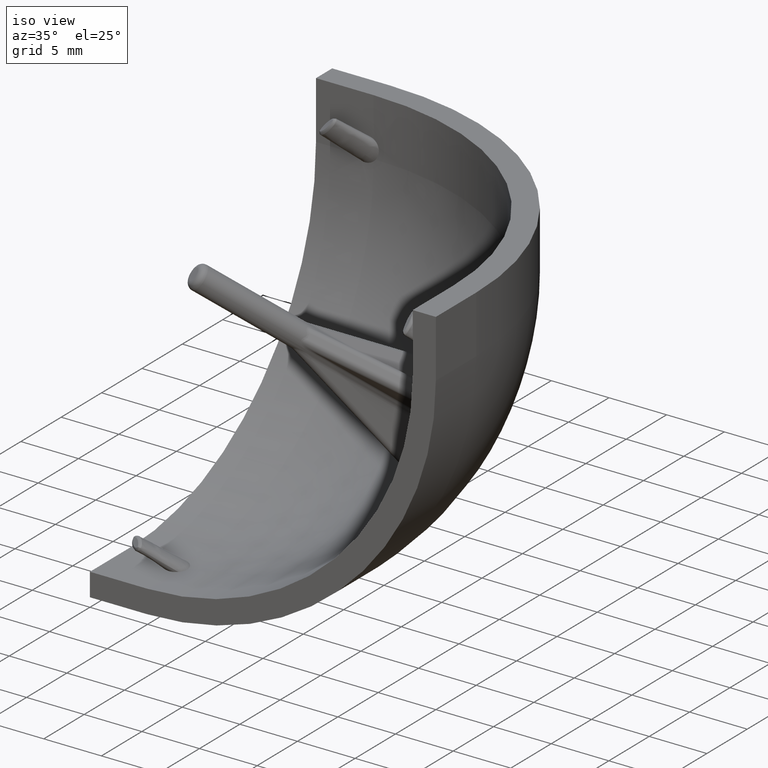
[diagram: clean part render]
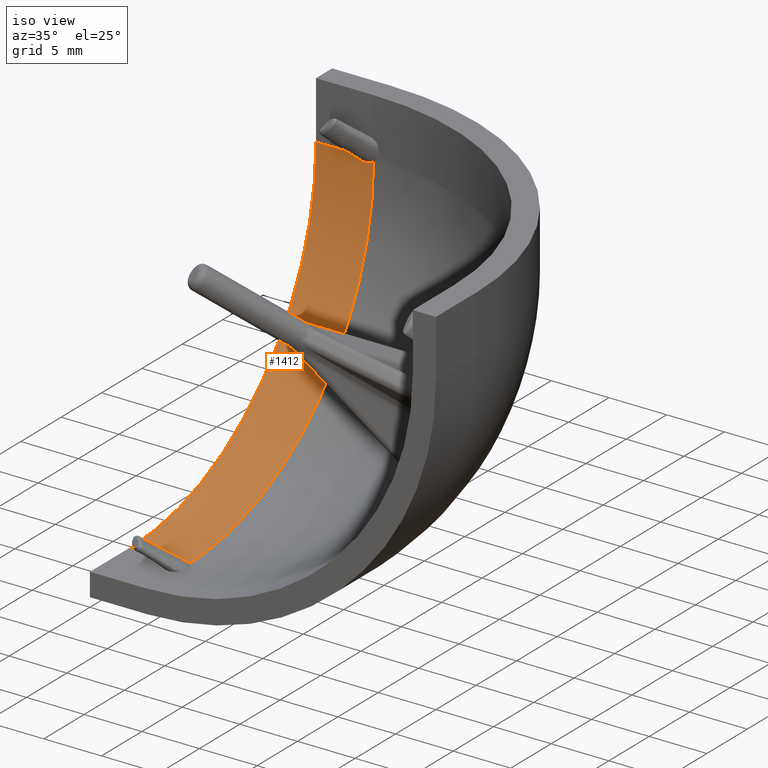
[diagram: same view with one face highlighted and labeled with its STEP entity id]
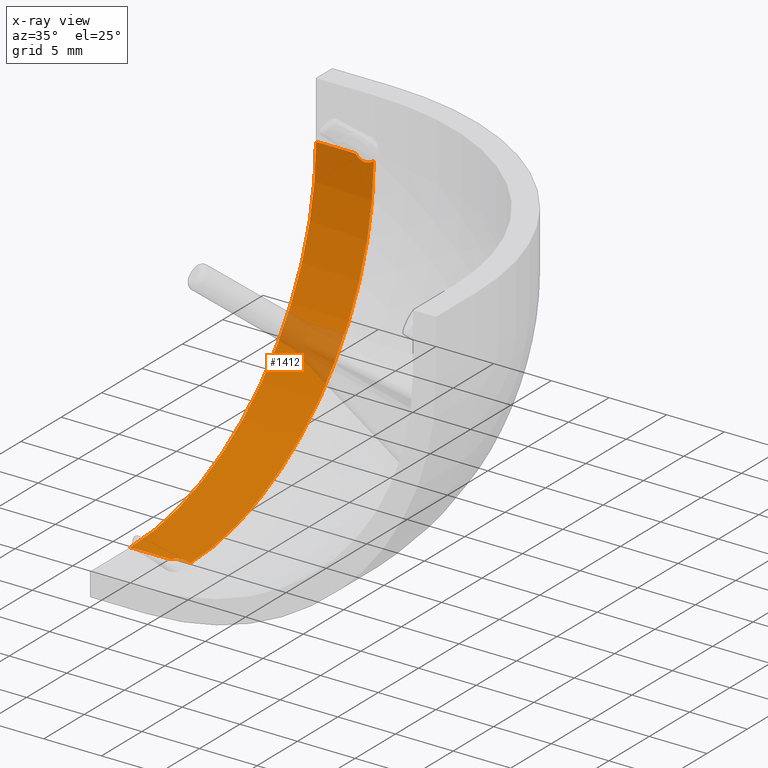
[diagram: x-ray of the same camera — body ghosted, the highlighted face saturated]
A machine part, iso view. The second image highlights one B-rep face of the part: STEP entity #1412.
The next image is the same camera in x-ray: the body ghosted, the highlighted face saturated — about 9% of this face is hidden behind the body in this view.
In plain terms, the highlighted cylindrical surface (partial cylindrical patch) has radius 23 mm, axis along (1, 0, -0).
Its self-contained STEP definition (entity closure, byte-faithful):
#78=CYLINDRICAL_SURFACE('',#1567,23.);
#115=CIRCLE('',#1529,23.);
#130=CIRCLE('',#1545,23.);
#224=FACE_OUTER_BOUND('',#314,.T.);
#314=EDGE_LOOP('',(#1134,#1135,#1136,#1137,#1138,#1139,#1140,#1141));
#413=LINE('',#5484,#471);
#417=LINE('',#5536,#475);
#471=VECTOR('',#1825,1000.);
#475=VECTOR('',#1847,1000.);
#488=B_SPLINE_CURVE_WITH_KNOTS('',3,(#2147,#2148,#2149,#2150,#2151,#2152),
 .UNSPECIFIED.,.F.,.F.,(4,2,4),(9.99999662123539E-7,0.00986059625022308,
0.0197048987349933),.UNSPECIFIED.);
#500=B_SPLINE_CURVE_WITH_KNOTS('',3,(#2777,#2778,#2779,#2780,#2781,#2782,
#2783,#2784,#2785,#2786,#2787,#2788),.UNSPECIFIED.,.F.,.F.,(4,2,2,2,2,4),
(9.99999747714522E-7,0.02031527031228,0.0405939994736865,0.0667656357999751,
0.0834172290885618,0.0951135427239088),.UNSPECIFIED.);
#547=B_SPLINE_CURVE_WITH_KNOTS('',3,(#5538,#5539,#5540,#5541,#5542,#5543,
#5544,#5545,#5546,#5547,#5548,#5549),.UNSPECIFIED.,.F.,.F.,(4,2,2,2,2,4),
(9.999999404831E-7,0.0364918917763539,0.088569232202797,0.170365590608539,
0.233890730315202,0.297485880107794),.UNSPECIFIED.);
#548=B_SPLINE_CURVE_WITH_KNOTS('',3,(#5550,#5551,#5552,#5553,#5554,#5555),
 .UNSPECIFIED.,.F.,.F.,(4,2,4),(9.99999562127304E-7,0.00984054738852286,
0.0196975137457518),.UNSPECIFIED.);
#561=VERTEX_POINT('',#2145);
#562=VERTEX_POINT('',#2146);
#577=VERTEX_POINT('',#2775);
#578=VERTEX_POINT('',#2776);
#643=VERTEX_POINT('',#5028);
#666=VERTEX_POINT('',#5415);
#667=VERTEX_POINT('',#5417);
#682=VERTEX_POINT('',#5517);
#700=EDGE_CURVE('',#561,#562,#488,.T.);
#716=EDGE_CURVE('',#577,#578,#500,.T.);
#794=EDGE_CURVE('',#578,#643,#115,.T.);
#822=EDGE_CURVE('',#666,#667,#130,.T.);
#847=EDGE_CURVE('',#667,#562,#413,.T.);
#856=EDGE_CURVE('',#666,#682,#417,.T.);
#857=EDGE_CURVE('',#643,#561,#547,.T.);
#858=EDGE_CURVE('',#682,#577,#548,.T.);
#1134=ORIENTED_EDGE('',*,*,#794,.T.);
#1135=ORIENTED_EDGE('',*,*,#857,.T.);
#1136=ORIENTED_EDGE('',*,*,#700,.T.);
#1137=ORIENTED_EDGE('',*,*,#847,.F.);
#1138=ORIENTED_EDGE('',*,*,#822,.F.);
#1139=ORIENTED_EDGE('',*,*,#856,.T.);
#1140=ORIENTED_EDGE('',*,*,#858,.T.);
#1141=ORIENTED_EDGE('',*,*,#716,.T.);
#1412=ADVANCED_FACE('',(#224),#78,.F.);
#1529=AXIS2_PLACEMENT_3D('',#5035,#1745,#1746);
#1545=AXIS2_PLACEMENT_3D('',#5418,#1782,#1783);
#1567=AXIS2_PLACEMENT_3D('',#5537,#1848,#1849);
#1745=DIRECTION('center_axis',(1.,8.67361737988403E-16,-3.49148133884313E-15));
#1746=DIRECTION('ref_axis',(3.49148133884313E-15,8.67361737988403E-16,1.));
#1782=DIRECTION('center_axis',(1.,2.44929359829471E-16,0.));
#1783=DIRECTION('ref_axis',(2.44929359829471E-16,-1.,0.));
#1825=DIRECTION('',(1.,0.,0.));
#1847=DIRECTION('',(1.,6.93889390390722E-15,-3.49148336110938E-15));
#1848=DIRECTION('center_axis',(1.,6.93889390390722E-15,-3.49148336110938E-15));
#1849=DIRECTION('ref_axis',(-6.93889390390722E-15,1.,-2.24207754291971E-44));
#2145=CARTESIAN_POINT('',(3.56746331594311,27.9994687629484,-5.1563221742381));
#2146=CARTESIAN_POINT('',(3.44771592869993,28.,-5.));
#2147=CARTESIAN_POINT('Ctrl Pts',(3.56746331594311,27.9994687629484,-5.1563221742381));
#2148=CARTESIAN_POINT('Ctrl Pts',(3.54489254593708,27.9996311438893,-5.13243128738172));
#2149=CARTESIAN_POINT('Ctrl Pts',(3.52350325998528,27.99976465365,-5.10726848093999));
#2150=CARTESIAN_POINT('Ctrl Pts',(3.48356612759445,27.9999486769791,-5.05513072343411));
#2151=CARTESIAN_POINT('Ctrl Pts',(3.46486436750266,28.,-5.02796451881354));
#2152=CARTESIAN_POINT('Ctrl Pts',(3.44771592869994,28.,-4.99999999999999));
#2775=CARTESIAN_POINT('',(3.56746331595482,5.15632217425031,-27.9994687629483));
#2776=CARTESIAN_POINT('',(4.99999999999993,5.19100617487928,-27.9992068698283));
#2777=CARTESIAN_POINT('Ctrl Pts',(3.56746331595482,5.15632217425031,-27.9994687629483));
#2778=CARTESIAN_POINT('Ctrl Pts',(3.61396480224382,5.20554343463472,-27.999134217202));
#2779=CARTESIAN_POINT('Ctrl Pts',(3.66660121439922,5.25052420796895,-27.9986675394266));
#2780=CARTESIAN_POINT('Ctrl Pts',(3.77777358764421,5.32715750524387,-27.9977049679311));
#2781=CARTESIAN_POINT('Ctrl Pts',(3.83672819366637,5.35912899599946,-27.997210263547));
#2782=CARTESIAN_POINT('Ctrl Pts',(3.97863665916375,5.41767863328948,-27.9962308459891));
#2783=CARTESIAN_POINT('Ctrl Pts',(4.10413768702444,5.45796986102491,-27.995440073584));
#2784=CARTESIAN_POINT('Ctrl Pts',(4.37952076397229,5.45673324830161,-27.9954646609109));
#2785=CARTESIAN_POINT('Ctrl Pts',(4.52336179368086,5.43945453380455,-27.9958918740621));
#2786=CARTESIAN_POINT('Ctrl Pts',(4.79802226650095,5.32962225244504,-27.9976825640759));
#2787=CARTESIAN_POINT('Ctrl Pts',(4.90460084477347,5.26711114926798,-27.9985748254222));
#2788=CARTESIAN_POINT('Ctrl Pts',(4.99999999999993,5.19100617487927,-27.9992068698283));
#5028=CARTESIAN_POINT('',(4.99999999999986,27.9992068698283,-5.19100617487972));
#5035=CARTESIAN_POINT('Origin',(5.00000000000002,5.,-4.99999999999998));
#5415=CARTESIAN_POINT('',(1.38777878078145E-14,4.99999999999995,-28.));
#5417=CARTESIAN_POINT('',(4.89858719658942E-16,28.,-5.));
#5418=CARTESIAN_POINT('Origin',(6.93889390390723E-15,4.99999999999996,-4.99999999999996));
#5484=CARTESIAN_POINT('',(4.89858719658942E-16,28.,-5.));
#5517=CARTESIAN_POINT('',(3.4477159287,4.99999999999996,-28.));
#5536=CARTESIAN_POINT('',(-39.0512483795332,4.99999999999967,-27.9999999999998));
#5537=CARTESIAN_POINT('Origin',(-39.0512483795332,4.99999999999969,-4.99999999999983));
#5538=CARTESIAN_POINT('Ctrl Pts',(4.99999999999984,27.9992068698283,-5.19100617487969));
#5539=CARTESIAN_POINT('Ctrl Pts',(4.90491383175014,27.9985768990429,-5.26686146292897));
#5540=CARTESIAN_POINT('Ctrl Pts',(4.7987281696617,27.9976884155518,-5.32920903999969));
#5541=CARTESIAN_POINT('Ctrl Pts',(4.52467246911247,27.9958986513271,-5.43911571079753));
#5542=CARTESIAN_POINT('Ctrl Pts',(4.38091946929641,27.9954675367056,-5.45658860180696));
#5543=CARTESIAN_POINT('Ctrl Pts',(4.10544136120082,27.9954359124342,-5.45817915922299));
#5544=CARTESIAN_POINT('Ctrl Pts',(3.97990822442732,27.9962234425137,-5.41808101819472));
#5545=CARTESIAN_POINT('Ctrl Pts',(3.83760878870315,27.9972031370382,-5.35958573393027));
#5546=CARTESIAN_POINT('Ctrl Pts',(3.77841024681073,27.997699526039,-5.32755074540279));
#5547=CARTESIAN_POINT('Ctrl Pts',(3.66687123457714,27.9986651315002,-5.2507556547622));
#5548=CARTESIAN_POINT('Ctrl Pts',(3.61408618412183,27.9991333439441,-5.20567191588537));
#5549=CARTESIAN_POINT('Ctrl Pts',(3.56746331594311,27.9994687629484,-5.1563221742381));
#5550=CARTESIAN_POINT('Ctrl Pts',(3.4477159287,4.99999999999996,-28.));
#5551=CARTESIAN_POINT('Ctrl Pts',(3.46486252555727,5.02796151509291,-28.));
#5552=CARTESIAN_POINT('Ctrl Pts',(3.48356790501425,5.05513300696196,-27.9999486683262));
#5553=CARTESIAN_POINT('Ctrl Pts',(3.52350500095456,5.10727079071842,-27.9997646460916));
#5554=CARTESIAN_POINT('Ctrl Pts',(3.54489012209996,5.13242872178015,-27.9996311613272));
#5555=CARTESIAN_POINT('Ctrl Pts',(3.56746331595482,5.15632217425031,-27.9994687629483));